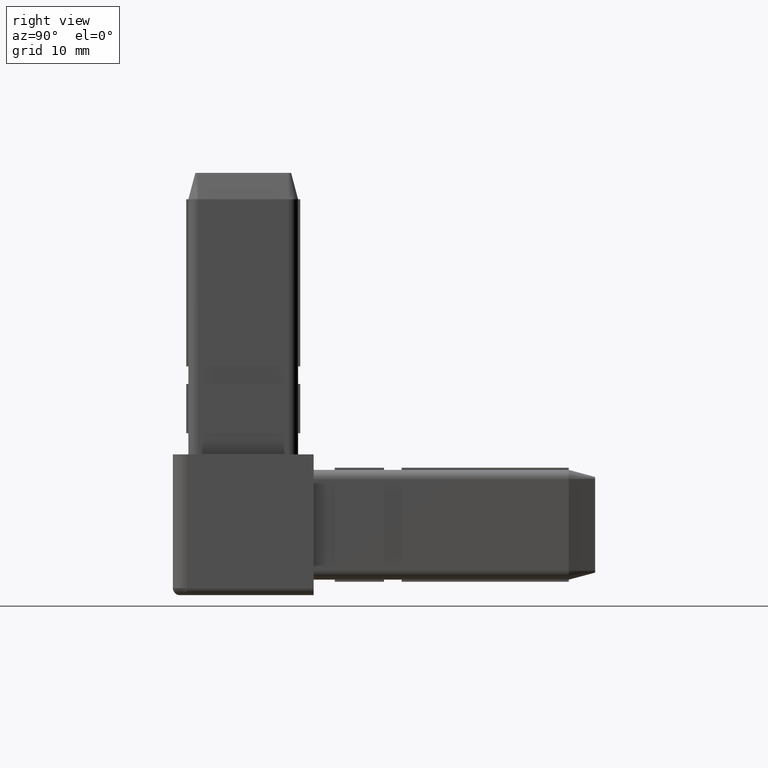
[diagram: clean part render]
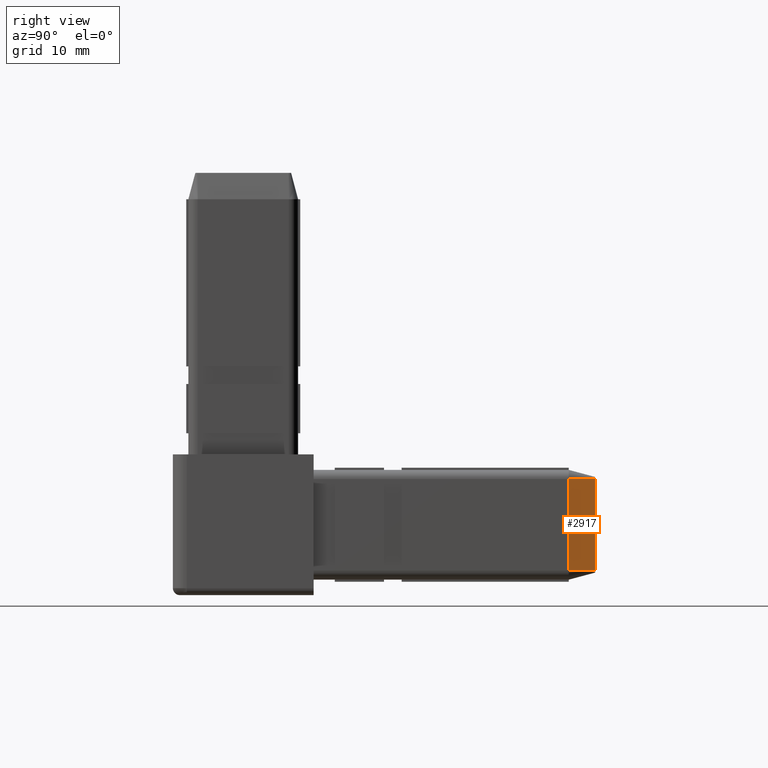
[diagram: same view with one face highlighted and labeled with its STEP entity id]
A machine part, right view. The second image highlights one B-rep face of the part: STEP entity #2917.
In plain terms, the highlighted face is a freeform B-spline surface patch.
Its self-contained STEP definition (entity closure, byte-faithful):
#2226=CARTESIAN_POINT('',(16.800000000000182,40.000002152544255,6.492702063203047));
#2227=VERTEX_POINT('',#2226);
#2235=CARTESIAN_POINT('',(16.800000000000182,40.000002152544255,-6.492702063166581));
#2236=VERTEX_POINT('',#2235);
#2237=CARTESIAN_POINT('',(16.800000000000182,40.000002152544255,6.492702063203083));
#2238=DIRECTION('',(0.0,0.0,-1.0));
#2239=VECTOR('',#2238,12.985404126369664);
#2240=LINE('',#2237,#2239);
#2241=EDGE_CURVE('',#2227,#2236,#2240,.T.);
#2481=CARTESIAN_POINT('',(17.800000000000182,36.250008828264470,-6.492702063166581));
#2482=VERTEX_POINT('',#2481);
#2514=CARTESIAN_POINT('',(17.799999999999955,36.250008828264470,-6.099999999999476));
#2515=VERTEX_POINT('',#2514);
#2516=CARTESIAN_POINT('',(17.800000000000182,36.250008828264470,-6.099999999999476));
#2517=DIRECTION('',(0.0,0.0,-1.0));
#2518=VECTOR('',#2517,0.392702063167105);
#2519=LINE('',#2516,#2518);
#2520=EDGE_CURVE('',#2515,#2482,#2519,.T.);
#2538=CARTESIAN_POINT('',(17.799999999999955,36.250008828264470,6.099999999999856));
#2539=VERTEX_POINT('',#2538);
#2546=CARTESIAN_POINT('',(17.800000000000182,36.250008828264470,6.492702063203049));
#2547=VERTEX_POINT('',#2546);
#2548=CARTESIAN_POINT('',(17.800000000000182,36.250008828264470,6.492702063203083));
#2549=DIRECTION('',(0.0,0.0,-1.0));
#2550=VECTOR('',#2549,0.392702063203227);
#2551=LINE('',#2548,#2550);
#2552=EDGE_CURVE('',#2547,#2539,#2551,.T.);
#2871=CARTESIAN_POINT('',(17.800000000000182,36.250008828264470,6.492702063203083));
#2872=DIRECTION('',(-0.257663078797641,0.966234825404529,0.0));
#2873=VECTOR('',#2872,3.881037223751269);
#2874=LINE('',#2871,#2873);
#2875=EDGE_CURVE('',#2547,#2227,#2874,.T.);
#2882=CARTESIAN_POINT('',(17.800000000000182,36.250008828264470,6.492702063203083));
#2883=CARTESIAN_POINT('',(17.466666666666850,37.500006603024396,6.492702063203083));
#2884=CARTESIAN_POINT('',(17.133333333333514,38.750004377784329,6.492702063203083));
#2885=CARTESIAN_POINT('',(16.800000000000182,40.000002152544255,6.492702063203083));
#2886=CARTESIAN_POINT('',(17.800000000000182,36.250008828264470,2.164234021079862));
#2887=CARTESIAN_POINT('',(17.466666666666850,37.500006603024396,2.164234021079862));
#2888=CARTESIAN_POINT('',(17.133333333333514,38.750004377784329,2.164234021079862));
#2889=CARTESIAN_POINT('',(16.800000000000182,40.000002152544255,2.164234021079862));
#2890=CARTESIAN_POINT('',(17.800000000000182,36.250008828264470,-2.164234021043360));
#2891=CARTESIAN_POINT('',(17.466666666666850,37.500006603024396,-2.164234021043360));
#2892=CARTESIAN_POINT('',(17.133333333333514,38.750004377784329,-2.164234021043360));
#2893=CARTESIAN_POINT('',(16.800000000000182,40.000002152544255,-2.164234021043360));
#2894=CARTESIAN_POINT('',(17.800000000000182,36.250008828264470,-6.492702063166581));
#2895=CARTESIAN_POINT('',(17.466666666666850,37.500006603024396,-6.492702063166581));
#2896=CARTESIAN_POINT('',(17.133333333333514,38.750004377784329,-6.492702063166581));
#2897=CARTESIAN_POINT('',(16.800000000000182,40.000002152544255,-6.492702063166581));
#2898=B_SPLINE_SURFACE_WITH_KNOTS('',3,3,((#2882,#2886,#2890,#2894),(#2883,#2887,#2891,#2895),(#2884,#2888,#2892,#2896),(#2885,#2889,#2893,#2897)),.UNSPECIFIED.,.F.,.F.,.U.,(4,4),(4,4),(0.0,3.881037223751269),(0.0,12.985404126369664),.UNSPECIFIED.);
#2899=ORIENTED_EDGE('',*,*,#2552,.T.);
#2900=CARTESIAN_POINT('',(17.800000000000182,36.250008828264470,6.099999999999856));
#2901=DIRECTION('',(0.0,0.0,-1.0));
#2902=VECTOR('',#2901,12.199999999999331);
#2903=LINE('',#2900,#2902);
#2904=EDGE_CURVE('',#2539,#2515,#2903,.T.);
#2905=ORIENTED_EDGE('',*,*,#2904,.T.);
#2906=ORIENTED_EDGE('',*,*,#2520,.T.);
#2907=CARTESIAN_POINT('',(17.800000000000182,36.250008828264470,-6.492702063166581));
#2908=DIRECTION('',(-0.257663078797641,0.966234825404529,0.0));
#2909=VECTOR('',#2908,3.881037223751269);
#2910=LINE('',#2907,#2909);
#2911=EDGE_CURVE('',#2482,#2236,#2910,.T.);
#2912=ORIENTED_EDGE('',*,*,#2911,.T.);
#2913=ORIENTED_EDGE('',*,*,#2241,.F.);
#2914=ORIENTED_EDGE('',*,*,#2875,.F.);
#2915=EDGE_LOOP('',(#2899,#2905,#2906,#2912,#2913,#2914));
#2916=FACE_OUTER_BOUND('',#2915,.T.);
#2917=ADVANCED_FACE('',(#2916),#2898,.F.);